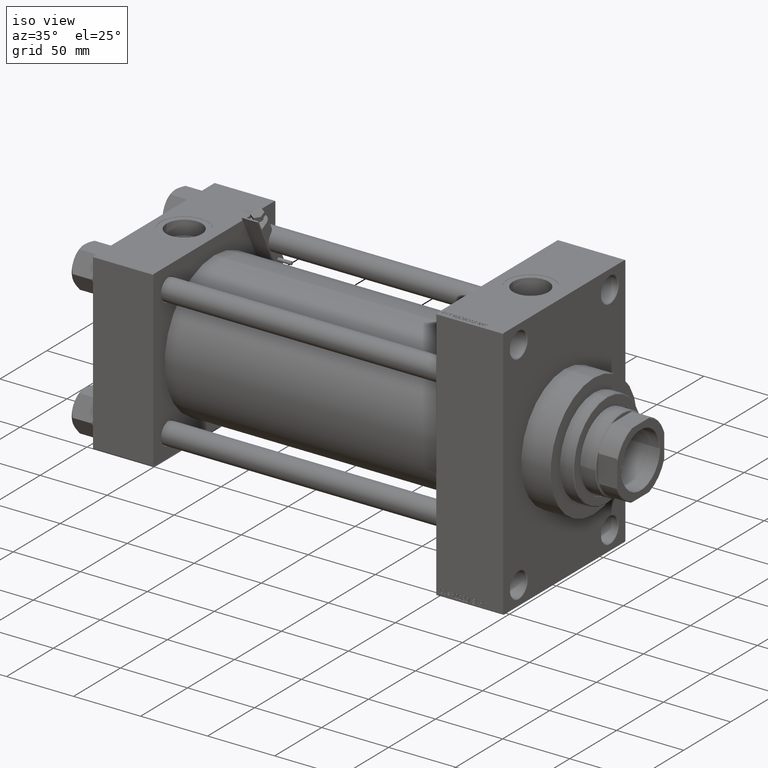
[diagram: clean part render]
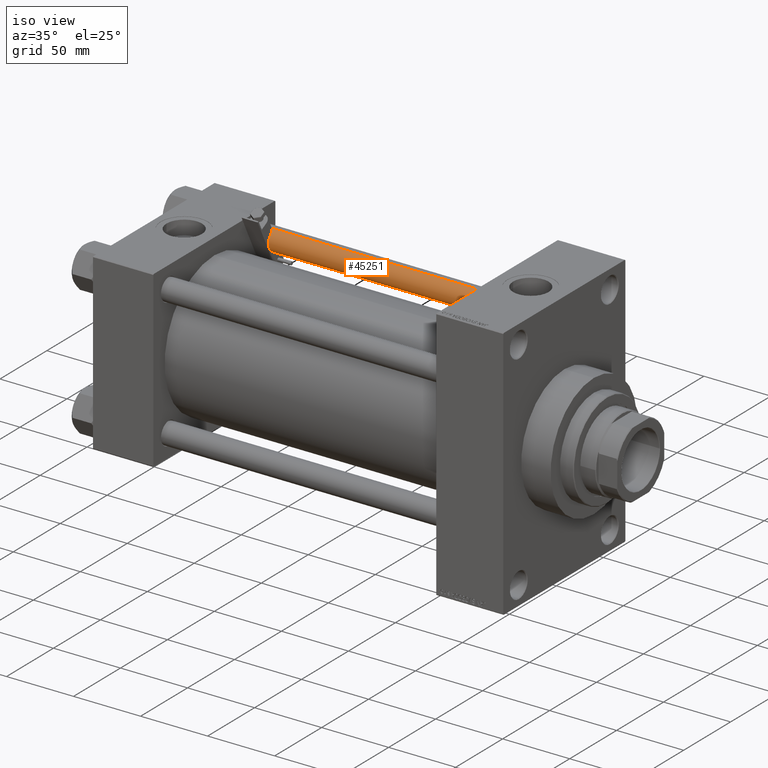
[diagram: same view with one face highlighted and labeled with its STEP entity id]
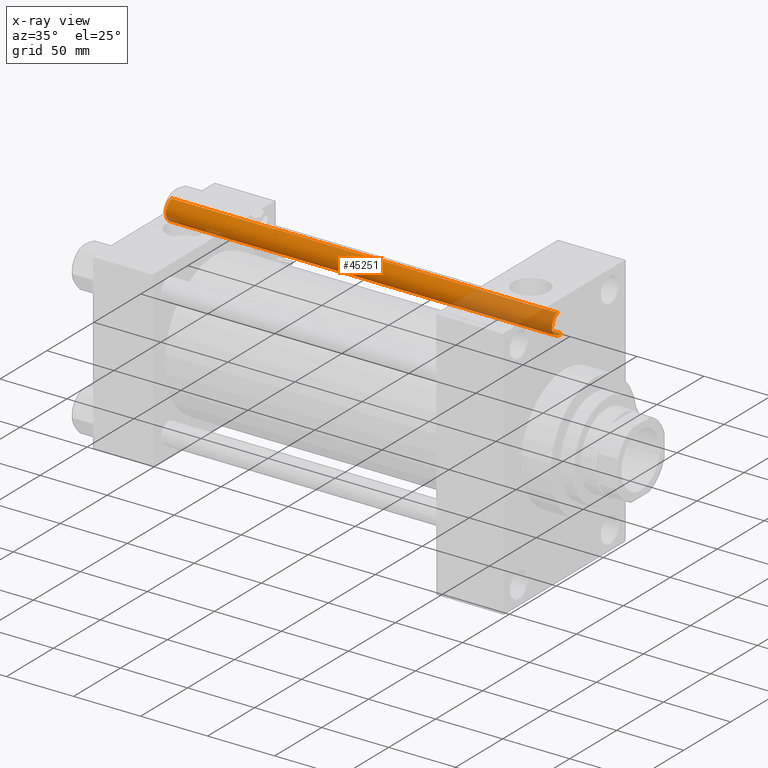
[diagram: x-ray of the same camera — body ghosted, the highlighted face saturated]
A machine part, iso view. The second image highlights one B-rep face of the part: STEP entity #45251.
The next image is the same camera in x-ray: the body ghosted, the highlighted face saturated — about 25% of this face is hidden behind the body in this view.
In plain terms, the highlighted cylindrical surface (edge-blend (fillet) strip) has radius 8 mm, axis along (-1, -0, 0).
Its self-contained STEP definition (entity closure, byte-faithful):
#366 = CARTESIAN_POINT ( 'NONE',  ( -8.000000000000000000, 0.000000000000000000, 289.0000000000000000 ) ) ;
#2488 = ORIENTED_EDGE ( 'NONE', *, *, #23464, .T. ) ;
#4309 = DIRECTION ( 'NONE',  ( -0.000000000000000000, -0.000000000000000000, -1.000000000000000000 ) ) ;
#6542 = CARTESIAN_POINT ( 'NONE',  ( 0.000000000000000000, 0.000000000000000000, 288.5000000000000000 ) ) ;
#6727 = CIRCLE ( 'NONE', #46182, 8.000000000000000000 ) ;
#8042 = CARTESIAN_POINT ( 'NONE',  ( 0.000000000000000000, 0.000000000000000000, 0.5000000000000004441 ) ) ;
#10252 = DIRECTION ( 'NONE',  ( 0.000000000000000000, 0.000000000000000000, -1.000000000000000000 ) ) ;
#12218 = VECTOR ( 'NONE', #26964, 1000.000000000000000 ) ;
#14831 = VECTOR ( 'NONE', #4309, 1000.000000000000000 ) ;
#16118 = DIRECTION ( 'NONE',  ( -0.000000000000000000, -0.000000000000000000, -1.000000000000000000 ) ) ;
#16766 = VERTEX_POINT ( 'NONE', #26687 ) ;
#21315 = EDGE_CURVE ( 'NONE', #16766, #27203, #33888, .T. ) ;
#21329 = ORIENTED_EDGE ( 'NONE', *, *, #21315, .F. ) ;
#21705 = VERTEX_POINT ( 'NONE', #39179 ) ;
#22111 = EDGE_LOOP ( 'NONE', ( #21329, #36128, #22924, #2488 ) ) ;
#22308 = CARTESIAN_POINT ( 'NONE',  ( 8.000000000000000000, 9.797174393178825657E-16, 289.0000000000000000 ) ) ;
#22924 = ORIENTED_EDGE ( 'NONE', *, *, #43332, .T. ) ;
#23464 = EDGE_CURVE ( 'NONE', #27436, #27203, #35886, .T. ) ;
#24001 = CARTESIAN_POINT ( 'NONE',  ( -8.000000000000000000, 0.000000000000000000, 0.5000000000000004441 ) ) ;
#24310 = CARTESIAN_POINT ( 'NONE',  ( 8.000000000000000000, 9.797174393178825657E-16, 0.5000000000000004441 ) ) ;
#25923 = AXIS2_PLACEMENT_3D ( 'NONE', #37611, #16118, #30684 ) ;
#26687 = CARTESIAN_POINT ( 'NONE',  ( 8.000000000000000000, 9.797174393178825657E-16, 288.5000000000000000 ) ) ;
#26964 = DIRECTION ( 'NONE',  ( -0.000000000000000000, -0.000000000000000000, -1.000000000000000000 ) ) ;
#27203 = VERTEX_POINT ( 'NONE', #24310 ) ;
#27436 = VERTEX_POINT ( 'NONE', #24001 ) ;
#27533 = DIRECTION ( 'NONE',  ( -0.000000000000000000, -0.000000000000000000, 1.000000000000000000 ) ) ;
#28761 = DIRECTION ( 'NONE',  ( 1.000000000000000000, 0.000000000000000000, 0.000000000000000000 ) ) ;
#30684 = DIRECTION ( 'NONE',  ( -1.000000000000000000, 0.000000000000000000, 0.000000000000000000 ) ) ;
#33888 = LINE ( 'NONE', #22308, #12218 ) ;
#34600 = EDGE_CURVE ( 'NONE', #16766, #21705, #6727, .T. ) ;
#35886 = CIRCLE ( 'NONE', #41474, 8.000000000000000000 ) ;
#36128 = ORIENTED_EDGE ( 'NONE', *, *, #34600, .T. ) ;
#37611 = CARTESIAN_POINT ( 'NONE',  ( 0.000000000000000000, 0.000000000000000000, 289.0000000000000000 ) ) ;
#39179 = CARTESIAN_POINT ( 'NONE',  ( -8.000000000000000000, 0.000000000000000000, 288.5000000000000000 ) ) ;
#41474 = AXIS2_PLACEMENT_3D ( 'NONE', #8042, #27533, #43338 ) ;
#41603 = LINE ( 'NONE', #366, #14831 ) ;
#42534 = CYLINDRICAL_SURFACE ( 'NONE', #25923, 8.000000000000000000 ) ;
#43332 = EDGE_CURVE ( 'NONE', #21705, #27436, #41603, .T. ) ;
#43338 = DIRECTION ( 'NONE',  ( 1.000000000000000000, 0.000000000000000000, 0.000000000000000000 ) ) ;
#45251 = ADVANCED_FACE ( 'NONE', ( #45277 ), #42534, .T. ) ;
#45277 = FACE_OUTER_BOUND ( 'NONE', #22111, .T. ) ;
#46182 = AXIS2_PLACEMENT_3D ( 'NONE', #6542, #10252, #28761 ) ;